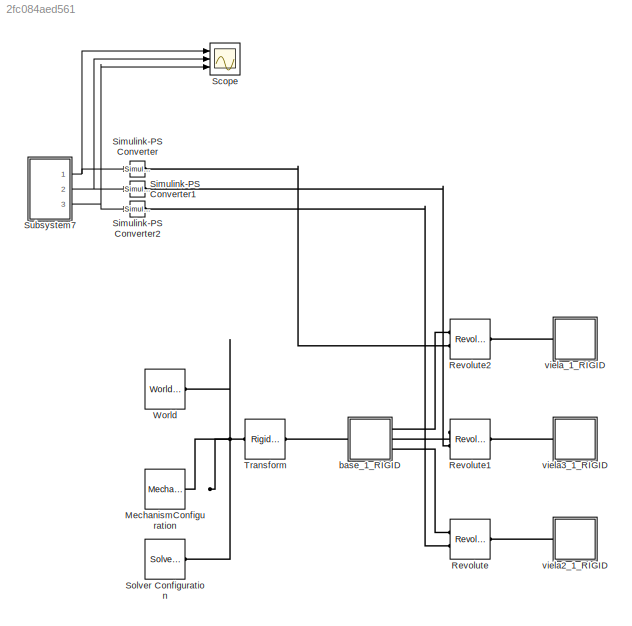
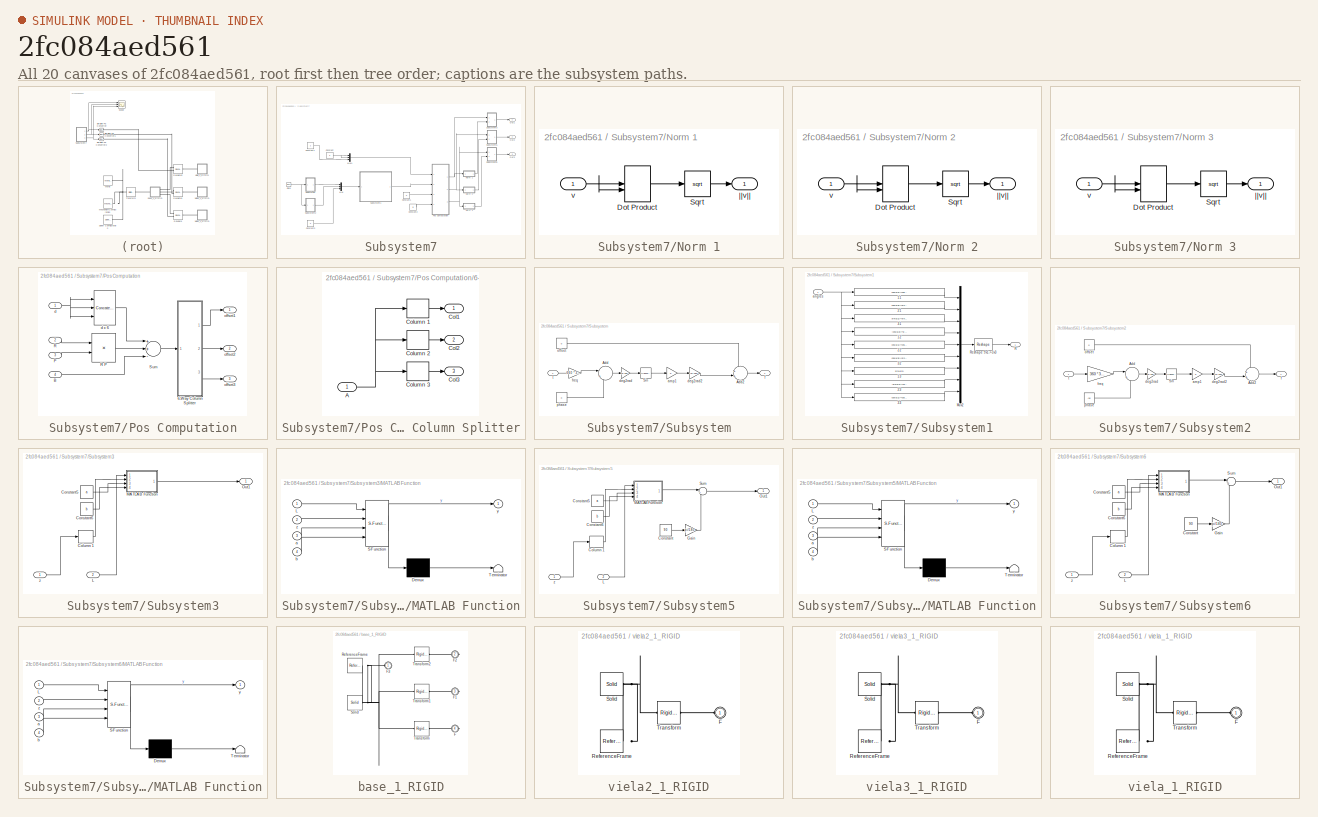
[diagram: thumbnail index - all 20 canvases of the model, root first then tree order]
MODEL slx_2fc084aed561
KIND model
CONFIG AbsTol = auto
CONFIG EnableMultiTasking = off
CONFIG FixedStep = auto
CONFIG MaxStep = auto
CONFIG MinStep = auto
CONFIG RelTol = 1e-3
CONFIG SampleTimeConstraint = Unconstrained
CONFIG Solver = VariableStepAuto
CONFIG SolverName = VariableStepAuto
CONFIG StartTime = 0.0
CONFIG StopTime = 10.0
WORKSPACE source: external: MATLAB File  (data not in archive)
BLOCK [Reference] MechanismConfiguration  REF=sm_lib/Utilities/Mechanism
Configuration
  Ports = [0, 0, 0, 0, 0, 0, 1]
  SourceBlock = sm_lib/Utilities/Mechanism\nConfiguration
  SourceProductBaseCode = MS
  SourceProductName = Simscape Multibody
  SourceType = Mechanism\nConfiguration
BLOCK [Reference] Revolute  REF=sm_lib/Joints/Revolute Joint
  Ports = [0, 0, 0, 0, 0, 2, 1]
  SourceBlock = sm_lib/Joints/Revolute Joint
  SourceProductBaseCode = MS
  SourceProductName = Simscape Multibody
  SourceType = Revolute Joint
BLOCK [Reference] Revolute1  REF=sm_lib/Joints/Revolute Joint
  Ports = [0, 0, 0, 0, 0, 2, 1]
  SourceBlock = sm_lib/Joints/Revolute Joint
  SourceProductBaseCode = MS
  SourceProductName = Simscape Multibody
  SourceType = Revolute Joint
BLOCK [Reference] Revolute2  REF=sm_lib/Joints/Revolute Joint
  Ports = [0, 0, 0, 0, 0, 2, 1]
  SourceBlock = sm_lib/Joints/Revolute Joint
  SourceProductBaseCode = MS
  SourceProductName = Simscape Multibody
  SourceType = Revolute Joint
BLOCK [Scope] Scope
  Floating = off
  NumInputPorts = 3
  Ports = [3]
  ScopeSpecificationString = Simulink.scopes.TimeScopeBlockCfg('CurrentConfiguration', extmgr.ConfigurationSet(extmgr.Configuration('Core','General UI',true),extmgr.Configuration('Core','Source UI',true),extmgr.Configuration('Sources','WiredSimulink',true),extmgr.Configuration('Visuals','Time Domain',true,'SerializedDisplays',{struct('MinYLimReal','-1.22375','MaxYLimReal','2.67035','YLabelReal','','MinYLimMag','0.00000','MaxY...<+1414ch>
BLOCK [Reference] Simulink-PS Converter  REF=nesl_utility/Simulink-PS
Converter
  Ports = [1, 0, 0, 0, 0, 0, 1]
  SourceBlock = nesl_utility/Simulink-PS\nConverter
  SourceProductBaseCode = SS
  SourceProductName = Simscape
  SourceType = Simulink-PS\nConverter
BLOCK [Reference] Simulink-PS Converter1  REF=nesl_utility/Simulink-PS
Converter
  Ports = [1, 0, 0, 0, 0, 0, 1]
  SourceBlock = nesl_utility/Simulink-PS\nConverter
  SourceProductBaseCode = SS
  SourceProductName = Simscape
  SourceType = Simulink-PS\nConverter
BLOCK [Reference] Simulink-PS Converter2  REF=nesl_utility/Simulink-PS
Converter
  Ports = [1, 0, 0, 0, 0, 0, 1]
  SourceBlock = nesl_utility/Simulink-PS\nConverter
  SourceProductBaseCode = SS
  SourceProductName = Simscape
  SourceType = Simulink-PS\nConverter
BLOCK [Reference] Solver Configuration  REF=nesl_utility/Solver
Configuration
  Ports = [0, 0, 0, 0, 0, 0, 1]
  SourceBlock = nesl_utility/Solver\nConfiguration
  SourceProductBaseCode = SS
  SourceProductName = Simscape
  SourceType = Solver\nConfiguration
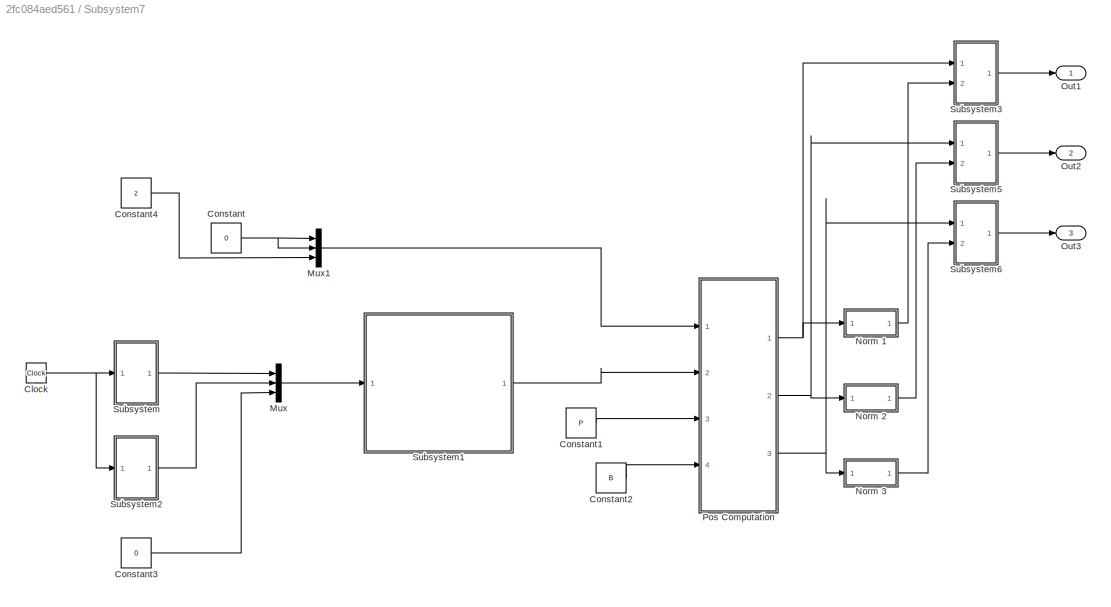
BLOCK [SubSystem] Subsystem7
  Ports = [0, 3]
  RequestExecContextInheritance = off
BLOCK [Clock] Subsystem7/Clock
BLOCK [Constant] Subsystem7/Constant
  Value = 0
BLOCK [Constant] Subsystem7/Constant1
  Value = P
BLOCK [Constant] Subsystem7/Constant2
  Value = B
BLOCK [Constant] Subsystem7/Constant3
  Value = 0
BLOCK [Constant] Subsystem7/Constant4
  Value = z
BLOCK [Mux] Subsystem7/Mux
  DisplayOption = bar
  Inputs = 3
  Ports = [3, 1]
BLOCK [Mux] Subsystem7/Mux1
  DisplayOption = bar
  Inputs = 3
  Ports = [3, 1]
BLOCK [SubSystem] Subsystem7/Norm 1
  Ports = [1, 1]
  RequestExecContextInheritance = off
BLOCK [DotProduct] Subsystem7/Norm 1/Dot Product
  InputSameDT = off
  OutDataTypeStr = Inherit: Inherit via internal rule
BLOCK [Sqrt] Subsystem7/Norm 1/Sqrt
BLOCK [Inport] Subsystem7/Norm 1/v
  IconDisplay = Port number
BLOCK [Outport] Subsystem7/Norm 1/||v||
  IconDisplay = Port number
BLOCK [SubSystem] Subsystem7/Norm 2
  Ports = [1, 1]
  RequestExecContextInheritance = off
BLOCK [DotProduct] Subsystem7/Norm 2/Dot Product
  InputSameDT = off
  OutDataTypeStr = Inherit: Inherit via internal rule
BLOCK [Sqrt] Subsystem7/Norm 2/Sqrt
BLOCK [Inport] Subsystem7/Norm 2/v
  IconDisplay = Port number
BLOCK [Outport] Subsystem7/Norm 2/||v||
  IconDisplay = Port number
BLOCK [SubSystem] Subsystem7/Norm 3
  Ports = [1, 1]
  RequestExecContextInheritance = off
BLOCK [DotProduct] Subsystem7/Norm 3/Dot Product
  InputSameDT = off
  OutDataTypeStr = Inherit: Inherit via internal rule
BLOCK [Sqrt] Subsystem7/Norm 3/Sqrt
BLOCK [Inport] Subsystem7/Norm 3/v
  IconDisplay = Port number
BLOCK [Outport] Subsystem7/Norm 3/||v||
  IconDisplay = Port number
BLOCK [Outport] Subsystem7/Out1
  IconDisplay = Port number
BLOCK [Outport] Subsystem7/Out2
  IconDisplay = Port number
  Port = 2
BLOCK [Outport] Subsystem7/Out3
  IconDisplay = Port number
  Port = 3
BLOCK [SubSystem] Subsystem7/Pos Computation
  Ports = [4, 3]
  RequestExecContextInheritance = off
BLOCK [SubSystem] Subsystem7/Pos Computation/6-Way Column Splitter
  Ports = [1, 3]
  RequestExecContextInheritance = off
BLOCK [Inport] Subsystem7/Pos Computation/6-Way Column Splitter/A
  IconDisplay = Port number
BLOCK [Outport] Subsystem7/Pos Computation/6-Way Column Splitter/Col1
  IconDisplay = Port number
BLOCK [Outport] Subsystem7/Pos Computation/6-Way Column Splitter/Col2
  IconDisplay = Port number
  Port = 2
BLOCK [Outport] Subsystem7/Pos Computation/6-Way Column Splitter/Col3
  IconDisplay = Port number
  Port = 3
BLOCK [Selector] Subsystem7/Pos Computation/6-Way Column Splitter/Column 1
  IndexOptions = Select all,Index vector (dialog)
  Indices = -1,1
  InputPortWidth = 3
  NumberOfDimensions = 2
  OutputSizes = 1
  Ports = [1, 1]
BLOCK [Selector] Subsystem7/Pos Computation/6-Way Column Splitter/Column 2
  IndexOptions = Select all,Index vector (dialog)
  Indices = -1,2
  InputPortWidth = 3
  NumberOfDimensions = 2
  OutputSizes = 1
  Ports = [1, 1]
BLOCK [Selector] Subsystem7/Pos Computation/6-Way Column Splitter/Column 3
  IndexOptions = Select all,Index vector (dialog)
  Indices = -1,3
  InputPortWidth = 3
  NumberOfDimensions = 2
  OutputSizes = 1
  Ports = [1, 1]
BLOCK [Inport] Subsystem7/Pos Computation/B
  IconDisplay = Port number
  Port = 4
BLOCK [Inport] Subsystem7/Pos Computation/P
  IconDisplay = Port number
  Port = 3
BLOCK [Inport] Subsystem7/Pos Computation/R
  IconDisplay = Port number
  Port = 2
BLOCK [Product] Subsystem7/Pos Computation/R P
  InputSameDT = off
  Multiplication = Matrix(*)
  OutDataTypeStr = Inherit: Inherit via internal rule
  Ports = [2, 1]
  SaturateOnIntegerOverflow = off
BLOCK [Sum] Subsystem7/Pos Computation/Sum
  InputSameDT = off
  Inputs = ++-
  OutDataTypeStr = Inherit: Inherit via internal rule
  Ports = [3, 1]
  SaturateOnIntegerOverflow = off
BLOCK [Inport] Subsystem7/Pos Computation/d
  IconDisplay = Port number
BLOCK [Concatenate] Subsystem7/Pos Computation/d x 6
  ConcatenateDimension = 2
  Mode = Multidimensional array
  NumInputs = 3
  Ports = [3, 1]
BLOCK [Outport] Subsystem7/Pos Computation/offset1
  IconDisplay = Port number
BLOCK [Outport] Subsystem7/Pos Computation/offset2
  IconDisplay = Port number
  Port = 2
BLOCK [Outport] Subsystem7/Pos Computation/offset3
  IconDisplay = Port number
  Port = 3
BLOCK [SubSystem] Subsystem7/Subsystem
  Ports = [1, 1]
  RequestExecContextInheritance = off
BLOCK [Sum] Subsystem7/Subsystem/Add
  IconShape = round
  InputSameDT = off
  Inputs = |++
  OutDataTypeStr = Inherit: Inherit via internal rule
  Ports = [2, 1]
  SaturateOnIntegerOverflow = off
BLOCK [Sum] Subsystem7/Subsystem/Add2
  IconShape = round
  InputSameDT = off
  Inputs = ++|
  OutDataTypeStr = Inherit: Inherit via internal rule
  Ports = [2, 1]
  SaturateOnIntegerOverflow = off
BLOCK [Trigonometry] Subsystem7/Subsystem/Sin
  Ports = [1, 1]
BLOCK [Gain] Subsystem7/Subsystem/amp1
  Gain = 5
  OutDataTypeStr = Inherit: Inherit via internal rule
  ParamDataTypeStr = Inherit: Inherit via internal rule
  SaturateOnIntegerOverflow = off
BLOCK [Gain] Subsystem7/Subsystem/deg2rad
  Gain = pi/180
  OutDataTypeStr = Inherit: Inherit via internal rule
  ParamDataTypeStr = Inherit: Inherit via internal rule
  SaturateOnIntegerOverflow = off
BLOCK [Gain] Subsystem7/Subsystem/deg2rad2
  Gain = (pi/180)
  OutDataTypeStr = Inherit: Inherit via internal rule
  ParamDataTypeStr = Inherit: Inherit via internal rule
  SaturateOnIntegerOverflow = off
BLOCK [Outport] Subsystem7/Subsystem/f
  IconDisplay = Port number
BLOCK [Gain] Subsystem7/Subsystem/freq
  Gain = 360 * 3 / 10
  OutDataTypeStr = Inherit: Inherit via internal rule
  ParamDataTypeStr = Inherit: Inherit via internal rule
  SaturateOnIntegerOverflow = off
BLOCK [Constant] Subsystem7/Subsystem/offset
  Value = 0
  VectorParams1D = off
BLOCK [Constant] Subsystem7/Subsystem/phase
  Value = 0
  VectorParams1D = off
BLOCK [Inport] Subsystem7/Subsystem/t
  IconDisplay = Port number
BLOCK [SubSystem] Subsystem7/Subsystem1
  Ports = [1, 1]
  RequestExecContextInheritance = off
BLOCK [Fcn] Subsystem7/Subsystem1/11
  Expr = cos(u[2])*cos(u[3])
BLOCK [Fcn] Subsystem7/Subsystem1/12
  Expr = -cos(u[2])*sin(u[3])
BLOCK [Fcn] Subsystem7/Subsystem1/13
  Expr = sin(u[2])
BLOCK [Fcn] Subsystem7/Subsystem1/21
  Expr = cos(u[3])*sin(u[2])*sin(u[1])+cos(u[1])*sin(u[3])
BLOCK [Fcn] Subsystem7/Subsystem1/22
  Expr = cos(u[1])*cos(u[3]) - sin(u[1])*sin(u[2])*sin(u[3])
BLOCK [Fcn] Subsystem7/Subsystem1/23
  Expr = -sin(u[1])*cos(u[2])
BLOCK [Fcn] Subsystem7/Subsystem1/31
  Expr = sin(u[1])*sin(u[3]) - cos(u[1])*cos(u[3])*sin(u[2])
BLOCK [Fcn] Subsystem7/Subsystem1/32
  Expr = cos(u[3])*sin(u[1])+cos(u[1])*sin(u[2])*sin(u[3])
BLOCK [Fcn] Subsystem7/Subsystem1/33
  Expr = cos(u[1])*cos(u[2])
BLOCK [Mux] Subsystem7/Subsystem1/Mux2
  DisplayOption = bar
  Inputs = 9
  Ports = [9, 1]
BLOCK [Outport] Subsystem7/Subsystem1/R
  IconDisplay = Port number
BLOCK [Reshape] Subsystem7/Subsystem1/Reshape 9x1->3x3
  OutputDimensionality = Customize
  OutputDimensions = [3,3]
  Ports = [1, 1]
BLOCK [Inport] Subsystem7/Subsystem1/angles
  IconDisplay = Port number
BLOCK [SubSystem] Subsystem7/Subsystem2
  Ports = [1, 1]
  RequestExecContextInheritance = off
BLOCK [Sum] Subsystem7/Subsystem2/Add
  IconShape = round
  InputSameDT = off
  Inputs = |++
  OutDataTypeStr = Inherit: Inherit via internal rule
  Ports = [2, 1]
  SaturateOnIntegerOverflow = off
BLOCK [Sum] Subsystem7/Subsystem2/Add2
  IconShape = round
  InputSameDT = off
  Inputs = ++|
  OutDataTypeStr = Inherit: Inherit via internal rule
  Ports = [2, 1]
  SaturateOnIntegerOverflow = off
BLOCK [Trigonometry] Subsystem7/Subsystem2/Sin
  Ports = [1, 1]
BLOCK [Gain] Subsystem7/Subsystem2/amp1
  Gain = 5
  OutDataTypeStr = Inherit: Inherit via internal rule
  ParamDataTypeStr = Inherit: Inherit via internal rule
  SaturateOnIntegerOverflow = off
BLOCK [Gain] Subsystem7/Subsystem2/deg2rad
  Gain = pi/180
  OutDataTypeStr = Inherit: Inherit via internal rule
  ParamDataTypeStr = Inherit: Inherit via internal rule
  SaturateOnIntegerOverflow = off
BLOCK [Gain] Subsystem7/Subsystem2/deg2rad2
  Gain = (pi/180)
  OutDataTypeStr = Inherit: Inherit via internal rule
  ParamDataTypeStr = Inherit: Inherit via internal rule
  SaturateOnIntegerOverflow = off
BLOCK [Outport] Subsystem7/Subsystem2/f
  IconDisplay = Port number
BLOCK [Gain] Subsystem7/Subsystem2/freq
  Gain = 360 * 3 / 10
  OutDataTypeStr = Inherit: Inherit via internal rule
  ParamDataTypeStr = Inherit: Inherit via internal rule
  SaturateOnIntegerOverflow = off
BLOCK [Constant] Subsystem7/Subsystem2/offset
  Value = 0
  VectorParams1D = off
BLOCK [Constant] Subsystem7/Subsystem2/phase
  Value = -90
  VectorParams1D = off
BLOCK [Inport] Subsystem7/Subsystem2/t
  IconDisplay = Port number
BLOCK [SubSystem] Subsystem7/Subsystem3
  Ports = [2, 1]
  RequestExecContextInheritance = off
BLOCK [Selector] Subsystem7/Subsystem3/Column 1
  IndexOptions = Index vector (dialog)
  Indices = 3
  InputPortWidth = 3
  OutputSizes = 1
  Ports = [1, 1]
BLOCK [Constant] Subsystem7/Subsystem3/Constant5
  Value = a
BLOCK [Constant] Subsystem7/Subsystem3/Constant6
  Value = b
BLOCK [Inport] Subsystem7/Subsystem3/L
  IconDisplay = Port number
  Port = 2
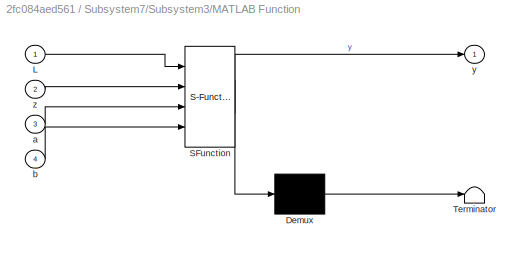
BLOCK [SubSystem] Subsystem7/Subsystem3/MATLAB Function
  ErrorFcn = Stateflow.Translate.translate
  PermitHierarchicalResolution = ExplicitOnly
  Ports = [4, 1]
  RequestExecContextInheritance = off
  SFBlockType = MATLAB Function
  TreatAsAtomicUnit = on
BLOCK [Demux] Subsystem7/Subsystem3/MATLAB Function/ Demux 
  Outputs = 1
  Ports = [1, 1]
BLOCK [S-Function] Subsystem7/Subsystem3/MATLAB Function/ SFunction 
  EnableBusSupport = on
  FunctionName = sf_sfun
  PortCounts = [4 2]
  Ports = [4, 2]
  SFcnIsStateOwnerBlock = off
  SFunctionDeploymentMode = off
  Tag = Stateflow S-Function base_viela 2
BLOCK [Terminator] Subsystem7/Subsystem3/MATLAB Function/ Terminator 
BLOCK [Inport] Subsystem7/Subsystem3/MATLAB Function/L
  IconDisplay = Port number
BLOCK [Inport] Subsystem7/Subsystem3/MATLAB Function/a
  IconDisplay = Port number
  Port = 3
BLOCK [Inport] Subsystem7/Subsystem3/MATLAB Function/b
  IconDisplay = Port number
  Port = 4
BLOCK [Outport] Subsystem7/Subsystem3/MATLAB Function/y
  IconDisplay = Port number
BLOCK [Inport] Subsystem7/Subsystem3/MATLAB Function/z
  IconDisplay = Port number
  Port = 2
BLOCK [Outport] Subsystem7/Subsystem3/Out1
  IconDisplay = Port number
BLOCK [Inport] Subsystem7/Subsystem3/z
  IconDisplay = Port number
BLOCK [SubSystem] Subsystem7/Subsystem5
  Ports = [2, 1]
  RequestExecContextInheritance = off
BLOCK [Selector] Subsystem7/Subsystem5/Column 1
  IndexOptions = Index vector (dialog)
  Indices = 3
  InputPortWidth = 3
  OutputSizes = 1
  Ports = [1, 1]
BLOCK [Constant] Subsystem7/Subsystem5/Constant
  Value = 90
BLOCK [Constant] Subsystem7/Subsystem5/Constant5
  Value = a
BLOCK [Constant] Subsystem7/Subsystem5/Constant6
  Value = b
BLOCK [Gain] Subsystem7/Subsystem5/Gain
  Gain = pi/180
  OutDataTypeStr = Inherit: Inherit via internal rule
  ParamDataTypeStr = Inherit: Inherit via internal rule
  SaturateOnIntegerOverflow = off
BLOCK [Inport] Subsystem7/Subsystem5/L
  IconDisplay = Port number
  Port = 2
BLOCK [SubSystem] Subsystem7/Subsystem5/MATLAB Function
  ErrorFcn = Stateflow.Translate.translate
  PermitHierarchicalResolution = ExplicitOnly
  Ports = [4, 1]
  RequestExecContextInheritance = off
  SFBlockType = MATLAB Function
  TreatAsAtomicUnit = on
BLOCK [Demux] Subsystem7/Subsystem5/MATLAB Function/ Demux 
  Outputs = 1
  Ports = [1, 1]
BLOCK [S-Function] Subsystem7/Subsystem5/MATLAB Function/ SFunction 
  EnableBusSupport = on
  FunctionName = sf_sfun
  PortCounts = [4 2]
  Ports = [4, 2]
  SFcnIsStateOwnerBlock = off
  SFunctionDeploymentMode = off
  Tag = Stateflow S-Function base_viela 1
BLOCK [Terminator] Subsystem7/Subsystem5/MATLAB Function/ Terminator 
BLOCK [Inport] Subsystem7/Subsystem5/MATLAB Function/L
  IconDisplay = Port number
BLOCK [Inport] Subsystem7/Subsystem5/MATLAB Function/a
  IconDisplay = Port number
  Port = 3
BLOCK [Inport] Subsystem7/Subsystem5/MATLAB Function/b
  IconDisplay = Port number
  Port = 4
BLOCK [Outport] Subsystem7/Subsystem5/MATLAB Function/y
  IconDisplay = Port number
BLOCK [Inport] Subsystem7/Subsystem5/MATLAB Function/z
  IconDisplay = Port number
  Port = 2
BLOCK [Outport] Subsystem7/Subsystem5/Out1
  IconDisplay = Port number
BLOCK [Sum] Subsystem7/Subsystem5/Sum
  IconShape = round
  InputSameDT = off
  Inputs = |+-
  OutDataTypeStr = Inherit: Inherit via internal rule
  Ports = [2, 1]
  SaturateOnIntegerOverflow = off
BLOCK [Inport] Subsystem7/Subsystem5/z
  IconDisplay = Port number
BLOCK [SubSystem] Subsystem7/Subsystem6
  Ports = [2, 1]
  RequestExecContextInheritance = off
BLOCK [Selector] Subsystem7/Subsystem6/Column 1
  IndexOptions = Index vector (dialog)
  Indices = 3
  InputPortWidth = 3
  OutputSizes = 1
  Ports = [1, 1]
BLOCK [Constant] Subsystem7/Subsystem6/Constant
  Value = 90
BLOCK [Constant] Subsystem7/Subsystem6/Constant5
  Value = a
BLOCK [Constant] Subsystem7/Subsystem6/Constant6
  Value = b
BLOCK [Gain] Subsystem7/Subsystem6/Gain
  Gain = pi/180
  OutDataTypeStr = Inherit: Inherit via internal rule
  ParamDataTypeStr = Inherit: Inherit via internal rule
  SaturateOnIntegerOverflow = off
BLOCK [Inport] Subsystem7/Subsystem6/L
  IconDisplay = Port number
  Port = 2
BLOCK [SubSystem] Subsystem7/Subsystem6/MATLAB Function
  ErrorFcn = Stateflow.Translate.translate
  PermitHierarchicalResolution = ExplicitOnly
  Ports = [4, 1]
  RequestExecContextInheritance = off
  SFBlockType = MATLAB Function
  TreatAsAtomicUnit = on
BLOCK [Demux] Subsystem7/Subsystem6/MATLAB Function/ Demux 
  Outputs = 1
  Ports = [1, 1]
BLOCK [S-Function] Subsystem7/Subsystem6/MATLAB Function/ SFunction 
  EnableBusSupport = on
  FunctionName = sf_sfun
  PortCounts = [4 2]
  Ports = [4, 2]
  SFcnIsStateOwnerBlock = off
  SFunctionDeploymentMode = off
  Tag = Stateflow S-Function base_viela 3
BLOCK [Terminator] Subsystem7/Subsystem6/MATLAB Function/ Terminator 
BLOCK [Inport] Subsystem7/Subsystem6/MATLAB Function/L
  IconDisplay = Port number
BLOCK [Inport] Subsystem7/Subsystem6/MATLAB Function/a
  IconDisplay = Port number
  Port = 3
BLOCK [Inport] Subsystem7/Subsystem6/MATLAB Function/b
  IconDisplay = Port number
  Port = 4
BLOCK [Outport] Subsystem7/Subsystem6/MATLAB Function/y
  IconDisplay = Port number
BLOCK [Inport] Subsystem7/Subsystem6/MATLAB Function/z
  IconDisplay = Port number
  Port = 2
BLOCK [Outport] Subsystem7/Subsystem6/Out1
  IconDisplay = Port number
BLOCK [Sum] Subsystem7/Subsystem6/Sum
  IconShape = round
  InputSameDT = off
  Inputs = |+-
  OutDataTypeStr = Inherit: Inherit via internal rule
  Ports = [2, 1]
  SaturateOnIntegerOverflow = off
BLOCK [Inport] Subsystem7/Subsystem6/z
  IconDisplay = Port number
BLOCK [Reference] Transform  REF=sm_lib/Frames and
Transforms/Rigid
Transform
  Ports = [0, 0, 0, 0, 0, 1, 1]
  SourceBlock = sm_lib/Frames and\nTransforms/Rigid\nTransform
  SourceProductBaseCode = MS
  SourceProductName = Simscape Multibody
  SourceType = Rigid\nTransform
BLOCK [Reference] World  REF=sm_lib/Frames and
Transforms/World Frame
  Ports = [0, 0, 0, 0, 0, 0, 1]
  SourceBlock = sm_lib/Frames and\nTransforms/World Frame
  SourceProductBaseCode = MS
  SourceProductName = Simscape Multibody
  SourceType = World Frame
BLOCK [SubSystem] base_1_RIGID
  Ports = [0, 0, 0, 0, 0, 1, 3]
  RequestExecContextInheritance = off
BLOCK [PMIOPort] base_1_RIGID/F
  Port = 4
  Side = Right
BLOCK [PMIOPort] base_1_RIGID/F1
  Port = 3
  Side = Right
BLOCK [PMIOPort] base_1_RIGID/F2
  Port = 2
  Side = Right
BLOCK [PMIOPort] base_1_RIGID/F3
  Side = Left
BLOCK [Reference] base_1_RIGID/ReferenceFrame  REF=sm_lib/Frames and
Transforms/Reference
Frame
  Ports = [0, 0, 0, 0, 0, 0, 1]
  SourceBlock = sm_lib/Frames and\nTransforms/Reference\nFrame
  SourceProductBaseCode = MS
  SourceProductName = Simscape Multibody
  SourceType = Reference\nFrame
BLOCK [Reference] base_1_RIGID/Solid  REF=sm_lib/Body Elements/Solid
  Ports = [0, 0, 0, 0, 0, 0, 1]
  SourceBlock = sm_lib/Body Elements/Solid
  SourceProductBaseCode = MS
  SourceProductName = Simscape Multibody
  SourceType = Solid
BLOCK [Reference] base_1_RIGID/Transform  REF=sm_lib/Frames and
Transforms/Rigid
Transform
  Ports = [0, 0, 0, 0, 0, 1, 1]
  SourceBlock = sm_lib/Frames and\nTransforms/Rigid\nTransform
  SourceProductBaseCode = MS
  SourceProductName = Simscape Multibody
  SourceType = Rigid\nTransform
BLOCK [Reference] base_1_RIGID/Transform1  REF=sm_lib/Frames and
Transforms/Rigid
Transform
  Ports = [0, 0, 0, 0, 0, 1, 1]
  SourceBlock = sm_lib/Frames and\nTransforms/Rigid\nTransform
  SourceProductBaseCode = MS
  SourceProductName = Simscape Multibody
  SourceType = Rigid\nTransform
BLOCK [Reference] base_1_RIGID/Transform2  REF=sm_lib/Frames and
Transforms/Rigid
Transform
  Ports = [0, 0, 0, 0, 0, 1, 1]
  SourceBlock = sm_lib/Frames and\nTransforms/Rigid\nTransform
  SourceProductBaseCode = MS
  SourceProductName = Simscape Multibody
  SourceType = Rigid\nTransform
BLOCK [SubSystem] viela2_1_RIGID
  Ports = [0, 0, 0, 0, 0, 1]
  RequestExecContextInheritance = off
BLOCK [PMIOPort] viela2_1_RIGID/F
  Side = Left
BLOCK [Reference] viela2_1_RIGID/ReferenceFrame  REF=sm_lib/Frames and
Transforms/Reference
Frame
  Ports = [0, 0, 0, 0, 0, 0, 1]
  SourceBlock = sm_lib/Frames and\nTransforms/Reference\nFrame
  SourceProductBaseCode = MS
  SourceProductName = Simscape Multibody
  SourceType = Reference\nFrame
BLOCK [Reference] viela2_1_RIGID/Solid  REF=sm_lib/Body Elements/Solid
  Ports = [0, 0, 0, 0, 0, 0, 1]
  SourceBlock = sm_lib/Body Elements/Solid
  SourceProductBaseCode = MS
  SourceProductName = Simscape Multibody
  SourceType = Solid
BLOCK [Reference] viela2_1_RIGID/Transform  REF=sm_lib/Frames and
Transforms/Rigid
Transform
  Ports = [0, 0, 0, 0, 0, 1, 1]
  SourceBlock = sm_lib/Frames and\nTransforms/Rigid\nTransform
  SourceProductBaseCode = MS
  SourceProductName = Simscape Multibody
  SourceType = Rigid\nTransform
BLOCK [SubSystem] viela3_1_RIGID
  Ports = [0, 0, 0, 0, 0, 1]
  RequestExecContextInheritance = off
BLOCK [PMIOPort] viela3_1_RIGID/F
  Side = Left
BLOCK [Reference] viela3_1_RIGID/ReferenceFrame  REF=sm_lib/Frames and
Transforms/Reference
Frame
  Ports = [0, 0, 0, 0, 0, 0, 1]
  SourceBlock = sm_lib/Frames and\nTransforms/Reference\nFrame
  SourceProductBaseCode = MS
  SourceProductName = Simscape Multibody
  SourceType = Reference\nFrame
BLOCK [Reference] viela3_1_RIGID/Solid  REF=sm_lib/Body Elements/Solid
  Ports = [0, 0, 0, 0, 0, 0, 1]
  SourceBlock = sm_lib/Body Elements/Solid
  SourceProductBaseCode = MS
  SourceProductName = Simscape Multibody
  SourceType = Solid
BLOCK [Reference] viela3_1_RIGID/Transform  REF=sm_lib/Frames and
Transforms/Rigid
Transform
  Ports = [0, 0, 0, 0, 0, 1, 1]
  SourceBlock = sm_lib/Frames and\nTransforms/Rigid\nTransform
  SourceProductBaseCode = MS
  SourceProductName = Simscape Multibody
  SourceType = Rigid\nTransform
BLOCK [SubSystem] viela_1_RIGID
  Ports = [0, 0, 0, 0, 0, 1]
  RequestExecContextInheritance = off
BLOCK [PMIOPort] viela_1_RIGID/F
  Side = Left
BLOCK [Reference] viela_1_RIGID/ReferenceFrame  REF=sm_lib/Frames and
Transforms/Reference
Frame
  Ports = [0, 0, 0, 0, 0, 0, 1]
  SourceBlock = sm_lib/Frames and\nTransforms/Reference\nFrame
  SourceProductBaseCode = MS
  SourceProductName = Simscape Multibody
  SourceType = Reference\nFrame
BLOCK [Reference] viela_1_RIGID/Solid  REF=sm_lib/Body Elements/Solid
  Ports = [0, 0, 0, 0, 0, 0, 1]
  SourceBlock = sm_lib/Body Elements/Solid
  SourceProductBaseCode = MS
  SourceProductName = Simscape Multibody
  SourceType = Solid
BLOCK [Reference] viela_1_RIGID/Transform  REF=sm_lib/Frames and
Transforms/Rigid
Transform
  Ports = [0, 0, 0, 0, 0, 1, 1]
  SourceBlock = sm_lib/Frames and\nTransforms/Rigid\nTransform
  SourceProductBaseCode = MS
  SourceProductName = Simscape Multibody
  SourceType = Rigid\nTransform
NET Subsystem7/Clock:1 -> Subsystem7/Subsystem2:1, Subsystem7/Subsystem:1
LINE Subsystem7/Constant1:1 -> Subsystem7/Pos Computation:3
LINE Subsystem7/Constant2:1 -> Subsystem7/Pos Computation:4
LINE Subsystem7/Constant3:1 -> Subsystem7/Mux:3
LINE Subsystem7/Constant4:1 -> Subsystem7/Mux1:3
NET Subsystem7/Constant:1 -> Subsystem7/Mux1:1, Subsystem7/Mux1:2
LINE Subsystem7/Mux1:1 -> Subsystem7/Pos Computation:1
LINE Subsystem7/Mux:1 -> Subsystem7/Subsystem1:1
LINE Subsystem7/Norm 1/Dot Product:1 -> Subsystem7/Norm 1/Sqrt:1
LINE Subsystem7/Norm 1/Sqrt:1 -> Subsystem7/Norm 1/||v||:1
NET Subsystem7/Norm 1/v:1 -> Subsystem7/Norm 1/Dot Product:1, Subsystem7/Norm 1/Dot Product:2
LINE Subsystem7/Norm 1:1 -> Subsystem7/Subsystem3:2
LINE Subsystem7/Norm 2/Dot Product:1 -> Subsystem7/Norm 2/Sqrt:1
LINE Subsystem7/Norm 2/Sqrt:1 -> Subsystem7/Norm 2/||v||:1
NET Subsystem7/Norm 2/v:1 -> Subsystem7/Norm 2/Dot Product:1, Subsystem7/Norm 2/Dot Product:2
LINE Subsystem7/Norm 2:1 -> Subsystem7/Subsystem5:2
LINE Subsystem7/Norm 3/Dot Product:1 -> Subsystem7/Norm 3/Sqrt:1
LINE Subsystem7/Norm 3/Sqrt:1 -> Subsystem7/Norm 3/||v||:1
NET Subsystem7/Norm 3/v:1 -> Subsystem7/Norm 3/Dot Product:1, Subsystem7/Norm 3/Dot Product:2
LINE Subsystem7/Norm 3:1 -> Subsystem7/Subsystem6:2
NET Subsystem7/Pos Computation/6-Way Column Splitter/A:1 -> Subsystem7/Pos Computation/6-Way Column Splitter/Column 1:1, Subsystem7/Pos Computation/6-Way Column Splitter/Column 2:1, Subsystem7/Pos Computation/6-Way Column Splitter/Column 3:1
LINE Subsystem7/Pos Computation/6-Way Column Splitter/Column 1:1 -> Subsystem7/Pos Computation/6-Way Column Splitter/Col1:1
LINE Subsystem7/Pos Computation/6-Way Column Splitter/Column 2:1 -> Subsystem7/Pos Computation/6-Way Column Splitter/Col2:1
LINE Subsystem7/Pos Computation/6-Way Column Splitter/Column 3:1 -> Subsystem7/Pos Computation/6-Way Column Splitter/Col3:1
LINE Subsystem7/Pos Computation/6-Way Column Splitter:1 -> Subsystem7/Pos Computation/offset1:1
LINE Subsystem7/Pos Computation/6-Way Column Splitter:2 -> Subsystem7/Pos Computation/offset2:1
LINE Subsystem7/Pos Computation/6-Way Column Splitter:3 -> Subsystem7/Pos Computation/offset3:1
LINE Subsystem7/Pos Computation/B:1 -> Subsystem7/Pos Computation/Sum:3
LINE Subsystem7/Pos Computation/P:1 -> Subsystem7/Pos Computation/R P:2
LINE Subsystem7/Pos Computation/R P:1 -> Subsystem7/Pos Computation/Sum:2
LINE Subsystem7/Pos Computation/R:1 -> Subsystem7/Pos Computation/R P:1
LINE Subsystem7/Pos Computation/Sum:1 -> Subsystem7/Pos Computation/6-Way Column Splitter:1
LINE Subsystem7/Pos Computation/d x 6:1 -> Subsystem7/Pos Computation/Sum:1
NET Subsystem7/Pos Computation/d:1 -> Subsystem7/Pos Computation/d x 6:1, Subsystem7/Pos Computation/d x 6:2, Subsystem7/Pos Computation/d x 6:3
NET Subsystem7/Pos Computation:1 -> Subsystem7/Norm 1:1, Subsystem7/Subsystem3:1
NET Subsystem7/Pos Computation:2 -> Subsystem7/Norm 2:1, Subsystem7/Subsystem5:1
NET Subsystem7/Pos Computation:3 -> Subsystem7/Norm 3:1, Subsystem7/Subsystem6:1
LINE Subsystem7/Subsystem/Add2:1 -> Subsystem7/Subsystem/f:1
LINE Subsystem7/Subsystem/Add:1 -> Subsystem7/Subsystem/deg2rad:1
LINE Subsystem7/Subsystem/Sin:1 -> Subsystem7/Subsystem/amp1:1
LINE Subsystem7/Subsystem/amp1:1 -> Subsystem7/Subsystem/deg2rad2:1
LINE Subsystem7/Subsystem/deg2rad2:1 -> Subsystem7/Subsystem/Add2:2
LINE Subsystem7/Subsystem/deg2rad:1 -> Subsystem7/Subsystem/Sin:1
LINE Subsystem7/Subsystem/freq:1 -> Subsystem7/Subsystem/Add:1
LINE Subsystem7/Subsystem/offset:1 -> Subsystem7/Subsystem/Add2:1
LINE Subsystem7/Subsystem/phase:1 -> Subsystem7/Subsystem/Add:2
LINE Subsystem7/Subsystem/t:1 -> Subsystem7/Subsystem/freq:1
LINE Subsystem7/Subsystem1/11:1 -> Subsystem7/Subsystem1/Mux2:1
LINE Subsystem7/Subsystem1/12:1 -> Subsystem7/Subsystem1/Mux2:4
LINE Subsystem7/Subsystem1/13:1 -> Subsystem7/Subsystem1/Mux2:7
LINE Subsystem7/Subsystem1/21:1 -> Subsystem7/Subsystem1/Mux2:2
LINE Subsystem7/Subsystem1/22:1 -> Subsystem7/Subsystem1/Mux2:5
LINE Subsystem7/Subsystem1/23:1 -> Subsystem7/Subsystem1/Mux2:8
LINE Subsystem7/Subsystem1/31:1 -> Subsystem7/Subsystem1/Mux2:3
LINE Subsystem7/Subsystem1/32:1 -> Subsystem7/Subsystem1/Mux2:6
LINE Subsystem7/Subsystem1/33:1 -> Subsystem7/Subsystem1/Mux2:9
LINE Subsystem7/Subsystem1/Mux2:1 -> Subsystem7/Subsystem1/Reshape 9x1->3x3:1
LINE Subsystem7/Subsystem1/Reshape 9x1->3x3:1 -> Subsystem7/Subsystem1/R:1
NET Subsystem7/Subsystem1/angles:1 -> Subsystem7/Subsystem1/11:1, Subsystem7/Subsystem1/12:1, Subsystem7/Subsystem1/13:1, Subsystem7/Subsystem1/21:1, Subsystem7/Subsystem1/22:1, Subsystem7/Subsystem1/23:1, Subsystem7/Subsystem1/31:1, Subsystem7/Subsystem1/32:1, Subsystem7/Subsystem1/33:1
LINE Subsystem7/Subsystem1:1 -> Subsystem7/Pos Computation:2
LINE Subsystem7/Subsystem2/Add2:1 -> Subsystem7/Subsystem2/f:1
LINE Subsystem7/Subsystem2/Add:1 -> Subsystem7/Subsystem2/deg2rad:1
LINE Subsystem7/Subsystem2/Sin:1 -> Subsystem7/Subsystem2/amp1:1
LINE Subsystem7/Subsystem2/amp1:1 -> Subsystem7/Subsystem2/deg2rad2:1
LINE Subsystem7/Subsystem2/deg2rad2:1 -> Subsystem7/Subsystem2/Add2:2
LINE Subsystem7/Subsystem2/deg2rad:1 -> Subsystem7/Subsystem2/Sin:1
LINE Subsystem7/Subsystem2/freq:1 -> Subsystem7/Subsystem2/Add:1
LINE Subsystem7/Subsystem2/offset:1 -> Subsystem7/Subsystem2/Add2:1
LINE Subsystem7/Subsystem2/phase:1 -> Subsystem7/Subsystem2/Add:2
LINE Subsystem7/Subsystem2/t:1 -> Subsystem7/Subsystem2/freq:1
LINE Subsystem7/Subsystem2:1 -> Subsystem7/Mux:2
LINE Subsystem7/Subsystem3/Column 1:1 -> Subsystem7/Subsystem3/MATLAB Function:2
LINE Subsystem7/Subsystem3/Constant5:1 -> Subsystem7/Subsystem3/MATLAB Function:3
LINE Subsystem7/Subsystem3/Constant6:1 -> Subsystem7/Subsystem3/MATLAB Function:4
LINE Subsystem7/Subsystem3/L:1 -> Subsystem7/Subsystem3/MATLAB Function:1
LINE Subsystem7/Subsystem3/MATLAB Function:1 -> Subsystem7/Subsystem3/Out1:1
LINE Subsystem7/Subsystem3/z:1 -> Subsystem7/Subsystem3/Column 1:1
LINE Subsystem7/Subsystem3:1 -> Subsystem7/Out1:1
LINE Subsystem7/Subsystem5/Column 1:1 -> Subsystem7/Subsystem5/MATLAB Function:2
LINE Subsystem7/Subsystem5/Constant5:1 -> Subsystem7/Subsystem5/MATLAB Function:3
LINE Subsystem7/Subsystem5/Constant6:1 -> Subsystem7/Subsystem5/MATLAB Function:4
LINE Subsystem7/Subsystem5/Constant:1 -> Subsystem7/Subsystem5/Gain:1
LINE Subsystem7/Subsystem5/Gain:1 -> Subsystem7/Subsystem5/Sum:2
LINE Subsystem7/Subsystem5/L:1 -> Subsystem7/Subsystem5/MATLAB Function:1
LINE Subsystem7/Subsystem5/MATLAB Function:1 -> Subsystem7/Subsystem5/Sum:1
LINE Subsystem7/Subsystem5/Sum:1 -> Subsystem7/Subsystem5/Out1:1
LINE Subsystem7/Subsystem5/z:1 -> Subsystem7/Subsystem5/Column 1:1
LINE Subsystem7/Subsystem5:1 -> Subsystem7/Out2:1
LINE Subsystem7/Subsystem6/Column 1:1 -> Subsystem7/Subsystem6/MATLAB Function:2
LINE Subsystem7/Subsystem6/Constant5:1 -> Subsystem7/Subsystem6/MATLAB Function:3
LINE Subsystem7/Subsystem6/Constant6:1 -> Subsystem7/Subsystem6/MATLAB Function:4
LINE Subsystem7/Subsystem6/Constant:1 -> Subsystem7/Subsystem6/Gain:1
LINE Subsystem7/Subsystem6/Gain:1 -> Subsystem7/Subsystem6/Sum:2
LINE Subsystem7/Subsystem6/L:1 -> Subsystem7/Subsystem6/MATLAB Function:1
LINE Subsystem7/Subsystem6/MATLAB Function:1 -> Subsystem7/Subsystem6/Sum:1
LINE Subsystem7/Subsystem6/Sum:1 -> Subsystem7/Subsystem6/Out1:1
LINE Subsystem7/Subsystem6/z:1 -> Subsystem7/Subsystem6/Column 1:1
LINE Subsystem7/Subsystem6:1 -> Subsystem7/Out3:1
LINE Subsystem7/Subsystem:1 -> Subsystem7/Mux:1
NET Subsystem7:1 -> Scope:1, Simulink-PS Converter:1
NET Subsystem7:2 -> Scope:2, Simulink-PS Converter1:1
NET Subsystem7:3 -> Scope:3, Simulink-PS Converter2:1
PNET net1: MechanismConfiguration:RConn1 -- Solver Configuration:RConn1 -- Transform:LConn1 -- World:RConn1
PLINE Revolute1:LConn1 -- base_1_RIGID:RConn2
PLINE Revolute1:LConn2 -- Simulink-PS Converter1:RConn1
PLINE Revolute1:RConn1 -- viela3_1_RIGID:LConn1
PLINE Revolute2:LConn1 -- base_1_RIGID:RConn1
PLINE Revolute2:LConn2 -- Simulink-PS Converter:RConn1
PLINE Revolute2:RConn1 -- viela_1_RIGID:LConn1
PLINE Revolute:LConn1 -- base_1_RIGID:RConn3
PLINE Revolute:LConn2 -- Simulink-PS Converter2:RConn1
PLINE Revolute:RConn1 -- viela2_1_RIGID:LConn1
PLINE Transform:RConn1 -- base_1_RIGID:LConn1
PLINE base_1_RIGID/F1:RConn1 -- base_1_RIGID/Transform1:RConn1
PLINE base_1_RIGID/F2:RConn1 -- base_1_RIGID/Transform2:RConn1
PNET net2: base_1_RIGID/F3:RConn1 -- base_1_RIGID/ReferenceFrame:RConn1 -- base_1_RIGID/Solid:RConn1 -- base_1_RIGID/Transform1:LConn1 -- base_1_RIGID/Transform2:LConn1 -- base_1_RIGID/Transform:LConn1
PLINE base_1_RIGID/F:RConn1 -- base_1_RIGID/Transform:RConn1
PLINE viela2_1_RIGID/F:RConn1 -- viela2_1_RIGID/Transform:RConn1
PNET net3: viela2_1_RIGID/ReferenceFrame:RConn1 -- viela2_1_RIGID/Solid:RConn1 -- viela2_1_RIGID/Transform:LConn1
PLINE viela3_1_RIGID/F:RConn1 -- viela3_1_RIGID/Transform:RConn1
PNET net4: viela3_1_RIGID/ReferenceFrame:RConn1 -- viela3_1_RIGID/Solid:RConn1 -- viela3_1_RIGID/Transform:LConn1
PLINE viela_1_RIGID/F:RConn1 -- viela_1_RIGID/Transform:RConn1
PNET net5: viela_1_RIGID/ReferenceFrame:RConn1 -- viela_1_RIGID/Solid:RConn1 -- viela_1_RIGID/Transform:LConn1
note: NET lines group one-source signal fan-out (src -> all destinations, sorted); 1:1 wires keep LINE; PNET lines group multi-terminal physical nets as a canonical sorted terminal list (undirected conserving connections); 2-terminal nets keep the pairwise PLINE form
CHART Subsystem7/Subsystem5/MATLAB Function states=1 transitions=1
  STATE_LABEL 'eML_blk_kernel()'
  STATE_LABEL 'SCRIPT:\nfunction y = fcn(L,z,a,b)\n\nx=(a*a+L*L-b*b)/(2*a*L);\nif x > 1\n    x=1;\nelseif x<-1\n    x=-1;\nend\n\nw=z/L;\nif w > 1\n    w=1;\nelseif w<-1\n    w=-1;\nend\n\nalpha=acos(x);\nbeta=acos(w);\ny = [alpha+beta];\n'  <repeated x3 — deduplicated; at blocks: MATLAB Function>
CHART Subsystem7/Subsystem3/MATLAB Function states=1 transitions=1
  STATE_LABEL 'eML_blk_kernel()'
CHART Subsystem7/Subsystem6/MATLAB Function states=1 transitions=1
  STATE_LABEL 'eML_blk_kernel()'
